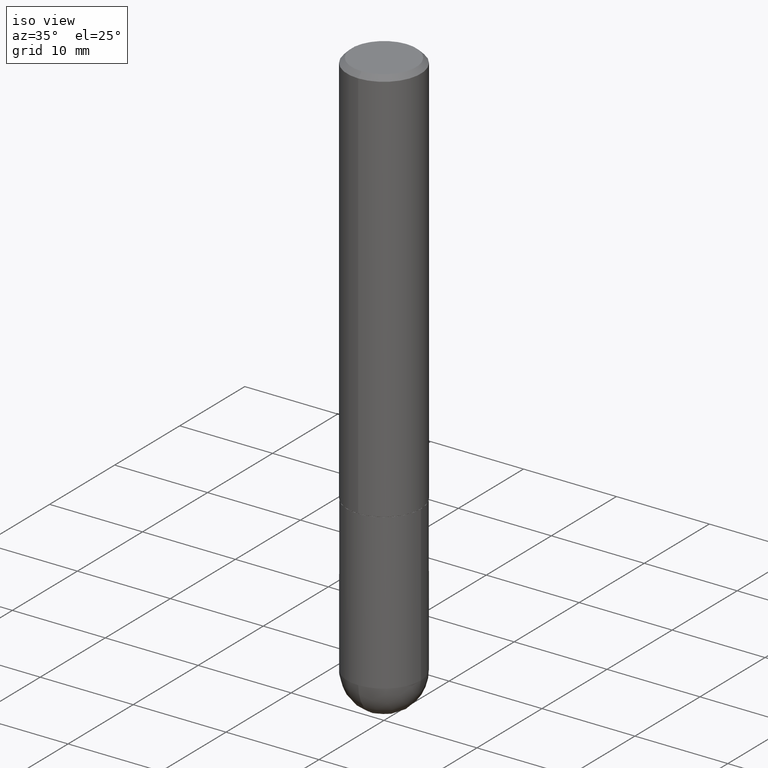
[diagram: clean part render]
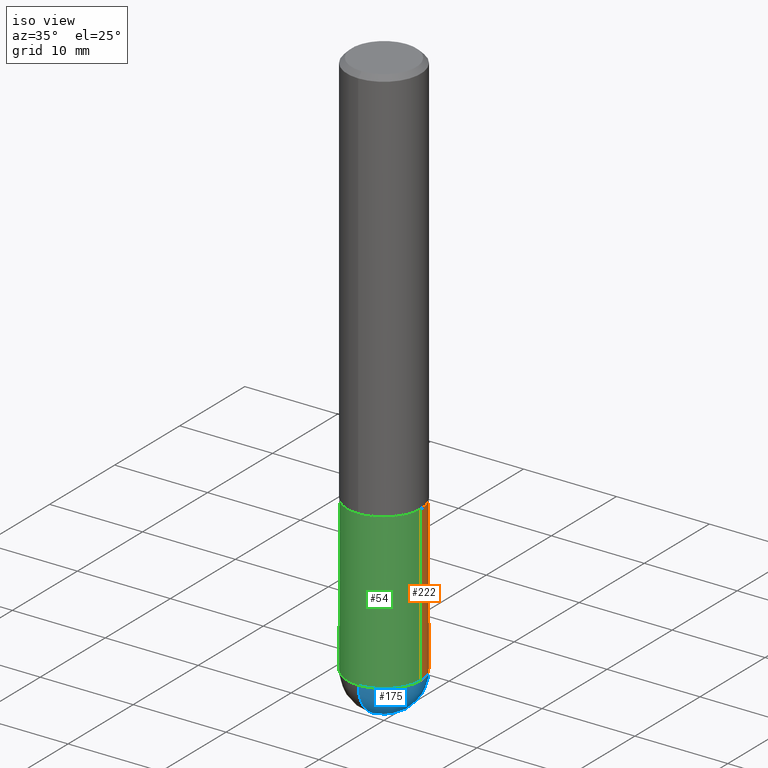
[diagram: same view with three faces highlighted in distinct colors, each labeled with its STEP entity id]
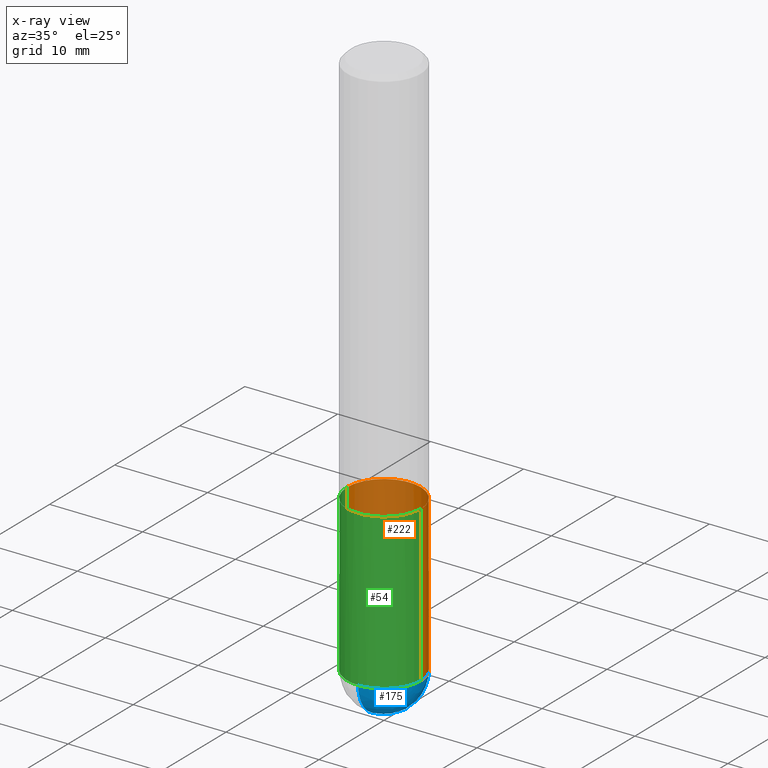
[diagram: x-ray of the same camera — body ghosted, the three highlighted faces saturated]
A machine part, iso view with three faces highlighted in distinct colors.
The next image is the same camera in x-ray (body ghosted, the three faces saturated) — at least one of them is partly hidden behind the body in this view.
Their STEP definitions:

[orange] entity #222 — the highlighted cylindrical surface (partial cylindrical patch) has radius 3.9688 mm, axis along (-0, 0, 1).
#1 = DIRECTION ( 'NONE',  ( 1.000000000000000000, -6.982962677686269077E-15, 0.000000000000000000 ) ) ;
#6 = CARTESIAN_POINT ( 'NONE',  ( 4.125505876034326327E-29, -5.890129018628388122E-15, -1.687000000000000277 ) ) ;
#15 = DIRECTION ( 'NONE',  ( -2.445468806185136597E-29, 3.491481338843145583E-15, 1.000000000000000000 ) ) ;
#18 = CYLINDRICAL_SURFACE ( 'NONE', #74, 0.1562500000000000000 ) ;
#20 = CIRCLE ( 'NONE', #188, 0.1562500000000000000 ) ;
#24 = CARTESIAN_POINT ( 'NONE',  ( -0.1562500000000000000, -5.926421178645850396E-15, -2.343750000000000000 ) ) ;
#25 = VERTEX_POINT ( 'NONE', #202 ) ;
#38 = VECTOR ( 'NONE', #145, 39.37007874015748143 ) ;
#59 = ORIENTED_EDGE ( 'NONE', *, *, #332, .T. ) ;
#62 = VERTEX_POINT ( 'NONE', #71 ) ;
#71 = CARTESIAN_POINT ( 'NONE',  ( 1.091087918388535577E-15, 0.1562499999999916733, -2.343750000000000444 ) ) ;
#72 = EDGE_CURVE ( 'NONE', #25, #125, #296, .T. ) ;
#74 = AXIS2_PLACEMENT_3D ( 'NONE', #146, #210, #89 ) ;
#89 = DIRECTION ( 'NONE',  ( 1.000000000000000000, -6.982962677686266711E-15, 4.876176775795936353E-29 ) ) ;
#91 = EDGE_CURVE ( 'NONE', #372, #125, #170, .T. ) ;
#122 = CARTESIAN_POINT ( 'NONE',  ( 0.1562500000000000000, -8.127732121659486109E-15, -2.343750000000000000 ) ) ;
#123 = ORIENTED_EDGE ( 'NONE', *, *, #264, .T. ) ;
#125 = VERTEX_POINT ( 'NONE', #387 ) ;
#145 = DIRECTION ( 'NONE',  ( -2.445468806185136877E-29, 3.491481338843145188E-15, 1.000000000000000000 ) ) ;
#146 = CARTESIAN_POINT ( 'NONE',  ( 0.000000000000000000, 0.000000000000000000, 0.000000000000000000 ) ) ;
#164 = EDGE_LOOP ( 'NONE', ( #123, #260, #217, #363, #59 ) ) ;
#170 = LINE ( 'NONE', #297, #38 ) ;
#174 = AXIS2_PLACEMENT_3D ( 'NONE', #6, #351, #1 ) ;
#181 = CIRCLE ( 'NONE', #316, 0.1562500000000000000 ) ;
#188 = AXIS2_PLACEMENT_3D ( 'NONE', #397, #371, #193 ) ;
#193 = DIRECTION ( 'NONE',  ( 1.000000000000000000, -6.982962677686262766E-15, 0.000000000000000000 ) ) ;
#195 = EDGE_CURVE ( 'NONE', #393, #25, #275, .T. ) ;
#202 = CARTESIAN_POINT ( 'NONE',  ( 0.1562500000000000000, -6.981216937016868084E-15, -1.687000000000000277 ) ) ;
#210 = DIRECTION ( 'NONE',  ( -2.445468806185136597E-29, 3.491481338843145583E-15, 1.000000000000000000 ) ) ;
#214 = CARTESIAN_POINT ( 'NONE',  ( 0.1562500000000000000, -1.091087918388479174E-15, 7.619026212181150377E-30 ) ) ;
#217 = ORIENTED_EDGE ( 'NONE', *, *, #72, .F. ) ;
#222 = ADVANCED_FACE ( 'NONE', ( #333 ), #18, .T. ) ;
#260 = ORIENTED_EDGE ( 'NONE', *, *, #91, .T. ) ;
#264 = EDGE_CURVE ( 'NONE', #62, #372, #181, .T. ) ;
#275 = LINE ( 'NONE', #214, #394 ) ;
#278 = DIRECTION ( 'NONE',  ( 1.000000000000000000, -6.982962677686262766E-15, 0.000000000000000000 ) ) ;
#296 = CIRCLE ( 'NONE', #174, 0.1562500000000000000 ) ;
#297 = CARTESIAN_POINT ( 'NONE',  ( -0.1562500000000000000, 1.110223024625156540E-15, -7.685836078523291160E-30 ) ) ;
#316 = AXIS2_PLACEMENT_3D ( 'NONE', #335, #15, #278 ) ;
#332 = EDGE_CURVE ( 'NONE', #393, #62, #20, .T. ) ;
#333 = FACE_OUTER_BOUND ( 'NONE', #164, .T. ) ;
#335 = CARTESIAN_POINT ( 'NONE',  ( 5.731567514496413899E-29, -8.183159387913622595E-15, -2.343750000000000000 ) ) ;
#351 = DIRECTION ( 'NONE',  ( -2.445468806185136597E-29, 3.491481338843145583E-15, 1.000000000000000000 ) ) ;
#363 = ORIENTED_EDGE ( 'NONE', *, *, #195, .F. ) ;
#371 = DIRECTION ( 'NONE',  ( -2.445468806185136597E-29, 3.491481338843145583E-15, 1.000000000000000000 ) ) ;
#372 = VERTEX_POINT ( 'NONE', #24 ) ;
#387 = CARTESIAN_POINT ( 'NONE',  ( -0.1562500000000000000, -5.926421178645848818E-15, -1.687000000000000277 ) ) ;
#393 = VERTEX_POINT ( 'NONE', #122 ) ;
#394 = VECTOR ( 'NONE', #395, 39.37007874015748143 ) ;
#395 = DIRECTION ( 'NONE',  ( -2.445468806185136877E-29, 3.491481338843145188E-15, 1.000000000000000000 ) ) ;
#397 = CARTESIAN_POINT ( 'NONE',  ( 5.731567514496413899E-29, -8.183159387913622595E-15, -2.343750000000000000 ) ) ;

[blue] entity #175 — the highlighted spherical surface has radius 3.9688 mm.
#13 = EDGE_LOOP ( 'NONE', ( #250, #93, #341, #132 ) ) ;
#20 = CIRCLE ( 'NONE', #188, 0.1562500000000000000 ) ;
#45 = AXIS2_PLACEMENT_3D ( 'NONE', #139, #266, #294 ) ;
#53 = FACE_OUTER_BOUND ( 'NONE', #13, .T. ) ;
#62 = VERTEX_POINT ( 'NONE', #71 ) ;
#71 = CARTESIAN_POINT ( 'NONE',  ( 1.091087918388535577E-15, 0.1562499999999916733, -2.343750000000000444 ) ) ;
#93 = ORIENTED_EDGE ( 'NONE', *, *, #251, .T. ) ;
#109 = EDGE_CURVE ( 'NONE', #219, #393, #218, .T. ) ;
#114 = DIRECTION ( 'NONE',  ( -7.105427357601000281E-15, -1.000000000000000000, 0.000000000000000000 ) ) ;
#117 = DIRECTION ( 'NONE',  ( 1.000000000000000000, -6.982962677686265922E-15, 4.883557194083112340E-29 ) ) ;
#122 = CARTESIAN_POINT ( 'NONE',  ( 0.1562500000000000000, -8.127732121659486109E-15, -2.343750000000000000 ) ) ;
#126 = AXIS2_PLACEMENT_3D ( 'NONE', #273, #392, #279 ) ;
#132 = ORIENTED_EDGE ( 'NONE', *, *, #109, .F. ) ;
#139 = CARTESIAN_POINT ( 'NONE',  ( 5.731567514496413899E-29, -8.183159387913622595E-15, -2.343750000000000000 ) ) ;
#147 = CARTESIAN_POINT ( 'NONE',  ( 5.400447736582527652E-29, -8.657341756053672891E-15, -2.343750000000000000 ) ) ;
#169 = CIRCLE ( 'NONE', #330, 0.1562500000000002498 ) ;
#175 = ADVANCED_FACE ( 'NONE', ( #53 ), #299, .T. ) ;
#179 = EDGE_CURVE ( 'NONE', #409, #219, #198, .T. ) ;
#188 = AXIS2_PLACEMENT_3D ( 'NONE', #397, #371, #193 ) ;
#193 = DIRECTION ( 'NONE',  ( 1.000000000000000000, -6.982962677686262766E-15, 0.000000000000000000 ) ) ;
#198 = CIRCLE ( 'NONE', #291, 0.1562500000000002498 ) ;
#218 = CIRCLE ( 'NONE', #45, 0.1562500000000000000 ) ;
#219 = VERTEX_POINT ( 'NONE', #237 ) ;
#237 = CARTESIAN_POINT ( 'NONE',  ( -1.110223024625101517E-15, -0.1562500000000085487, -2.343749999999999556 ) ) ;
#250 = ORIENTED_EDGE ( 'NONE', *, *, #179, .F. ) ;
#251 = EDGE_CURVE ( 'NONE', #409, #62, #169, .T. ) ;
#266 = DIRECTION ( 'NONE',  ( -2.445468806185136597E-29, 3.491481338843145583E-15, 1.000000000000000000 ) ) ;
#273 = CARTESIAN_POINT ( 'NONE',  ( 5.400447736582527652E-29, -8.657341756053672891E-15, -2.343750000000000000 ) ) ;
#279 = DIRECTION ( 'NONE',  ( 6.982962677686265922E-15, 1.000000000000000000, -3.496765431890251398E-15 ) ) ;
#281 = DIRECTION ( 'NONE',  ( -1.000000000000000000, 7.105427357601001070E-15, -4.926315508542082329E-29 ) ) ;
#291 = AXIS2_PLACEMENT_3D ( 'NONE', #147, #281, #114 ) ;
#294 = DIRECTION ( 'NONE',  ( 1.000000000000000000, -6.982962677686262766E-15, 0.000000000000000000 ) ) ;
#299 = SPHERICAL_SURFACE ( 'NONE', #126, 0.1562500000000002498 ) ;
#330 = AXIS2_PLACEMENT_3D ( 'NONE', #331, #117, #362 ) ;
#331 = CARTESIAN_POINT ( 'NONE',  ( 5.400447736582527652E-29, -8.657341756053672891E-15, -2.343750000000000000 ) ) ;
#332 = EDGE_CURVE ( 'NONE', #393, #62, #20, .T. ) ;
#341 = ORIENTED_EDGE ( 'NONE', *, *, #332, .F. ) ;
#362 = DIRECTION ( 'NONE',  ( 6.982962677686265922E-15, 1.000000000000000000, 0.000000000000000000 ) ) ;
#371 = DIRECTION ( 'NONE',  ( -2.445468806185136597E-29, 3.491481338843145583E-15, 1.000000000000000000 ) ) ;
#379 = CARTESIAN_POINT ( 'NONE',  ( 5.789233224183170584E-29, -9.193318162129576161E-15, -2.500000000000000000 ) ) ;
#392 = DIRECTION ( 'NONE',  ( -1.000000000000000000, 6.982962677686265922E-15, -4.883557194083112340E-29 ) ) ;
#393 = VERTEX_POINT ( 'NONE', #122 ) ;
#397 = CARTESIAN_POINT ( 'NONE',  ( 5.731567514496413899E-29, -8.183159387913622595E-15, -2.343750000000000000 ) ) ;
#409 = VERTEX_POINT ( 'NONE', #379 ) ;

[green] entity #54 — the highlighted cylindrical surface (partial cylindrical patch) has radius 3.9688 mm, axis along (-0, 0, 1).
#10 = CARTESIAN_POINT ( 'NONE',  ( 0.000000000000000000, 0.000000000000000000, 0.000000000000000000 ) ) ;
#11 = CARTESIAN_POINT ( 'NONE',  ( 4.125505876034326327E-29, -5.890129018628388122E-15, -1.687000000000000277 ) ) ;
#24 = CARTESIAN_POINT ( 'NONE',  ( -0.1562500000000000000, -5.926421178645850396E-15, -2.343750000000000000 ) ) ;
#25 = VERTEX_POINT ( 'NONE', #202 ) ;
#26 = ORIENTED_EDGE ( 'NONE', *, *, #209, .F. ) ;
#38 = VECTOR ( 'NONE', #145, 39.37007874015748143 ) ;
#45 = AXIS2_PLACEMENT_3D ( 'NONE', #139, #266, #294 ) ;
#54 = ADVANCED_FACE ( 'NONE', ( #324 ), #171, .T. ) ;
#68 = DIRECTION ( 'NONE',  ( 1.000000000000000000, -6.982962677686262766E-15, 0.000000000000000000 ) ) ;
#91 = EDGE_CURVE ( 'NONE', #372, #125, #170, .T. ) ;
#103 = EDGE_LOOP ( 'NONE', ( #197, #380, #378, #156, #26 ) ) ;
#109 = EDGE_CURVE ( 'NONE', #219, #393, #218, .T. ) ;
#113 = DIRECTION ( 'NONE',  ( 1.000000000000000000, -6.982962677686269077E-15, 0.000000000000000000 ) ) ;
#122 = CARTESIAN_POINT ( 'NONE',  ( 0.1562500000000000000, -8.127732121659486109E-15, -2.343750000000000000 ) ) ;
#125 = VERTEX_POINT ( 'NONE', #387 ) ;
#137 = EDGE_CURVE ( 'NONE', #372, #219, #322, .T. ) ;
#139 = CARTESIAN_POINT ( 'NONE',  ( 5.731567514496413899E-29, -8.183159387913622595E-15, -2.343750000000000000 ) ) ;
#145 = DIRECTION ( 'NONE',  ( -2.445468806185136877E-29, 3.491481338843145188E-15, 1.000000000000000000 ) ) ;
#154 = AXIS2_PLACEMENT_3D ( 'NONE', #388, #203, #68 ) ;
#156 = ORIENTED_EDGE ( 'NONE', *, *, #195, .T. ) ;
#170 = LINE ( 'NONE', #297, #38 ) ;
#171 = CYLINDRICAL_SURFACE ( 'NONE', #375, 0.1562500000000000000 ) ;
#195 = EDGE_CURVE ( 'NONE', #393, #25, #275, .T. ) ;
#197 = ORIENTED_EDGE ( 'NONE', *, *, #91, .F. ) ;
#202 = CARTESIAN_POINT ( 'NONE',  ( 0.1562500000000000000, -6.981216937016868084E-15, -1.687000000000000277 ) ) ;
#203 = DIRECTION ( 'NONE',  ( -2.445468806185136597E-29, 3.491481338843145583E-15, 1.000000000000000000 ) ) ;
#209 = EDGE_CURVE ( 'NONE', #125, #25, #399, .T. ) ;
#214 = CARTESIAN_POINT ( 'NONE',  ( 0.1562500000000000000, -1.091087918388479174E-15, 7.619026212181150377E-30 ) ) ;
#218 = CIRCLE ( 'NONE', #45, 0.1562500000000000000 ) ;
#219 = VERTEX_POINT ( 'NONE', #237 ) ;
#224 = AXIS2_PLACEMENT_3D ( 'NONE', #11, #366, #113 ) ;
#237 = CARTESIAN_POINT ( 'NONE',  ( -1.110223024625101517E-15, -0.1562500000000085487, -2.343749999999999556 ) ) ;
#266 = DIRECTION ( 'NONE',  ( -2.445468806185136597E-29, 3.491481338843145583E-15, 1.000000000000000000 ) ) ;
#275 = LINE ( 'NONE', #214, #394 ) ;
#294 = DIRECTION ( 'NONE',  ( 1.000000000000000000, -6.982962677686262766E-15, 0.000000000000000000 ) ) ;
#297 = CARTESIAN_POINT ( 'NONE',  ( -0.1562500000000000000, 1.110223024625156540E-15, -7.685836078523291160E-30 ) ) ;
#322 = CIRCLE ( 'NONE', #154, 0.1562500000000000000 ) ;
#324 = FACE_OUTER_BOUND ( 'NONE', #103, .T. ) ;
#356 = DIRECTION ( 'NONE',  ( -2.445468806185136597E-29, 3.491481338843145583E-15, 1.000000000000000000 ) ) ;
#366 = DIRECTION ( 'NONE',  ( -2.445468806185136597E-29, 3.491481338843145583E-15, 1.000000000000000000 ) ) ;
#372 = VERTEX_POINT ( 'NONE', #24 ) ;
#375 = AXIS2_PLACEMENT_3D ( 'NONE', #10, #356, #391 ) ;
#378 = ORIENTED_EDGE ( 'NONE', *, *, #109, .T. ) ;
#380 = ORIENTED_EDGE ( 'NONE', *, *, #137, .T. ) ;
#387 = CARTESIAN_POINT ( 'NONE',  ( -0.1562500000000000000, -5.926421178645848818E-15, -1.687000000000000277 ) ) ;
#388 = CARTESIAN_POINT ( 'NONE',  ( 5.731567514496413899E-29, -8.183159387913622595E-15, -2.343750000000000000 ) ) ;
#391 = DIRECTION ( 'NONE',  ( 1.000000000000000000, -6.982962677686266711E-15, 4.876176775795936353E-29 ) ) ;
#393 = VERTEX_POINT ( 'NONE', #122 ) ;
#394 = VECTOR ( 'NONE', #395, 39.37007874015748143 ) ;
#395 = DIRECTION ( 'NONE',  ( -2.445468806185136877E-29, 3.491481338843145188E-15, 1.000000000000000000 ) ) ;
#399 = CIRCLE ( 'NONE', #224, 0.1562500000000000000 ) ;